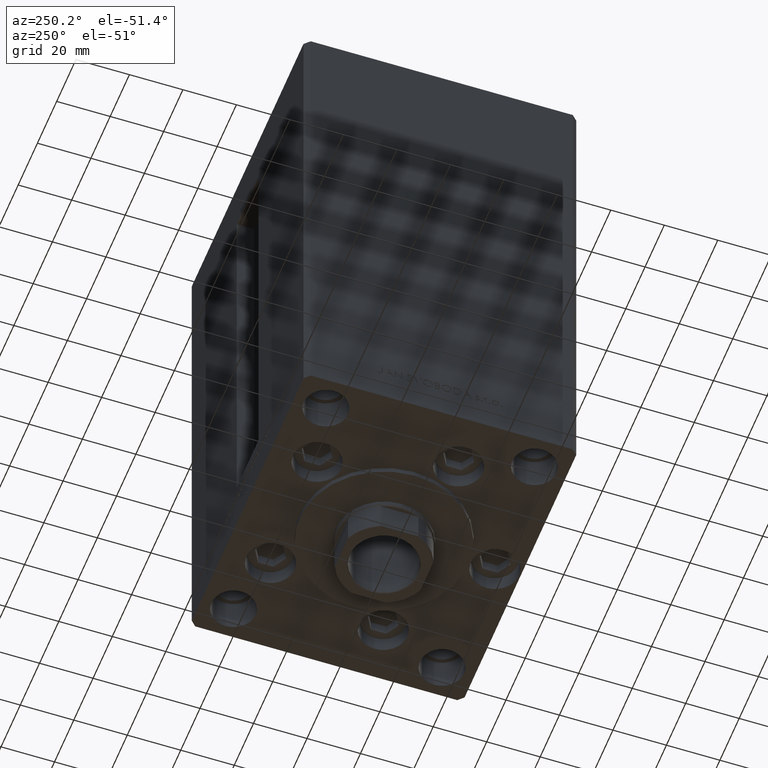
[diagram: clean part render]
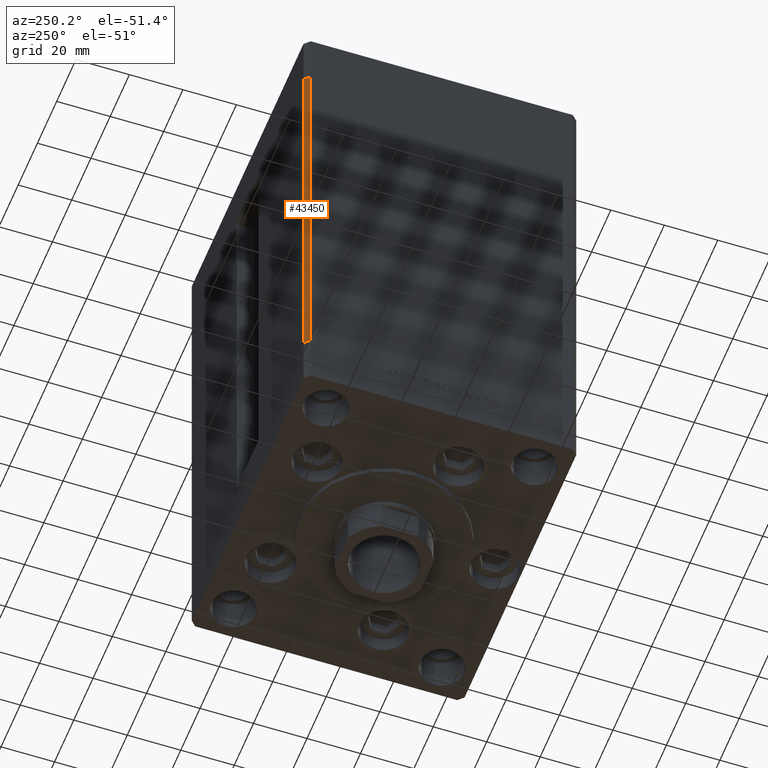
[diagram: same view with one face highlighted and labeled with its STEP entity id]
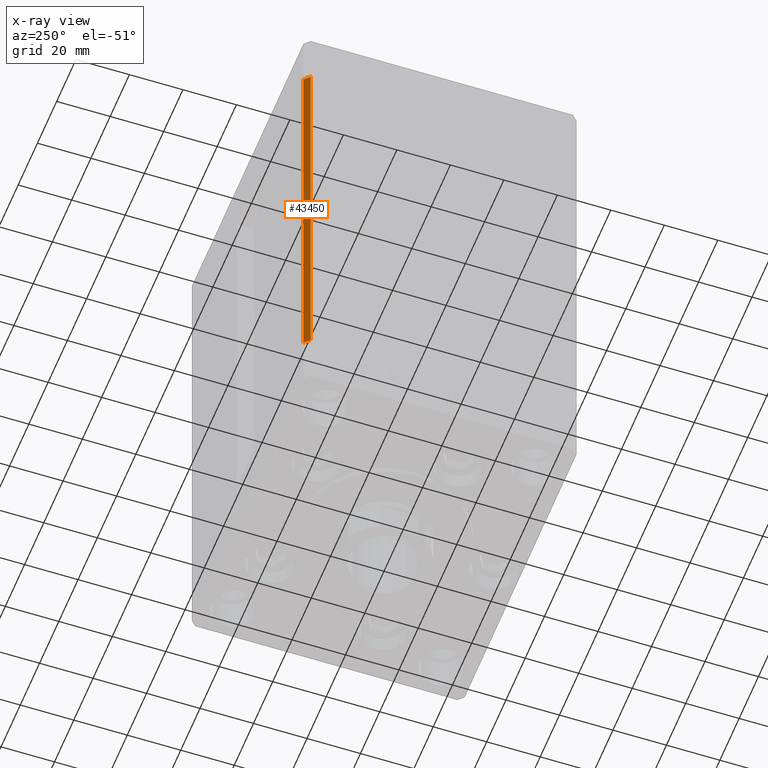
[diagram: x-ray of the same camera — body ghosted, the highlighted face saturated]
A machine part, auxiliary view. The second image highlights one B-rep face of the part: STEP entity #43450.
The next image is the same camera in x-ray: the body ghosted, the highlighted face saturated — about 0% of this face is hidden behind the body in this view.
In plain terms, the highlighted planar face has unit normal (0.7071, -0.7071, 0).
Its self-contained STEP definition (entity closure, byte-faithful):
#101 = EDGE_LOOP ( 'NONE', ( #3540, #40838, #34002, #42616 ) ) ;
#2161 = EDGE_CURVE ( 'NONE', #26567, #30780, #23352, .T. ) ;
#3054 = LINE ( 'NONE', #44311, #13132 ) ;
#3540 = ORIENTED_EDGE ( 'NONE', *, *, #35799, .T. ) ;
#3807 = VERTEX_POINT ( 'NONE', #7862 ) ;
#7862 = CARTESIAN_POINT ( 'NONE',  ( -57.99999999999999289, 51.00000000000000711, 0.000000000000000000 ) ) ;
#11552 = VECTOR ( 'NONE', #38509, 1000.000000000000114 ) ;
#12875 = DIRECTION ( 'NONE',  ( 0.7071067811865499042, 0.7071067811865451302, 0.000000000000000000 ) ) ;
#13132 = VECTOR ( 'NONE', #41565, 1000.000000000000000 ) ;
#13638 = LINE ( 'NONE', #47424, #13753 ) ;
#13753 = VECTOR ( 'NONE', #13882, 1000.000000000000000 ) ;
#13882 = DIRECTION ( 'NONE',  ( -0.000000000000000000, -0.000000000000000000, -1.000000000000000000 ) ) ;
#16349 = PLANE ( 'NONE',  #42465 ) ;
#17006 = VERTEX_POINT ( 'NONE', #39970 ) ;
#23164 = CARTESIAN_POINT ( 'NONE',  ( -57.99999999999999289, 51.00000000000000711, 148.5000000000000000 ) ) ;
#23352 = LINE ( 'NONE', #46217, #11552 ) ;
#26567 = VERTEX_POINT ( 'NONE', #23164 ) ;
#27785 = CARTESIAN_POINT ( 'NONE',  ( -57.99999999999999289, 51.00000000000000711, 148.5000000000000000 ) ) ;
#30780 = VERTEX_POINT ( 'NONE', #43329 ) ;
#34002 = ORIENTED_EDGE ( 'NONE', *, *, #2161, .F. ) ;
#35799 = EDGE_CURVE ( 'NONE', #3807, #17006, #43353, .T. ) ;
#37062 = CARTESIAN_POINT ( 'NONE',  ( -57.99999999999999289, 51.00000000000000711, 0.000000000000000000 ) ) ;
#38233 = EDGE_CURVE ( 'NONE', #30780, #17006, #13638, .T. ) ;
#38509 = DIRECTION ( 'NONE',  ( -0.7071067811865500152, -0.7071067811865451302, 0.000000000000000000 ) ) ;
#38955 = FACE_OUTER_BOUND ( 'NONE', #101, .T. ) ;
#39970 = CARTESIAN_POINT ( 'NONE',  ( -60.00000000000001421, 49.00000000000000000, 0.000000000000000000 ) ) ;
#40838 = ORIENTED_EDGE ( 'NONE', *, *, #38233, .F. ) ;
#41565 = DIRECTION ( 'NONE',  ( -0.000000000000000000, -0.000000000000000000, -1.000000000000000000 ) ) ;
#42227 = VECTOR ( 'NONE', #46837, 1000.000000000000114 ) ;
#42465 = AXIS2_PLACEMENT_3D ( 'NONE', #27785, #42937, #12875 ) ;
#42616 = ORIENTED_EDGE ( 'NONE', *, *, #45051, .T. ) ;
#42937 = DIRECTION ( 'NONE',  ( 0.7071067811865451302, -0.7071067811865499042, 0.000000000000000000 ) ) ;
#43329 = CARTESIAN_POINT ( 'NONE',  ( -60.00000000000001421, 49.00000000000000000, 148.5000000000000000 ) ) ;
#43353 = LINE ( 'NONE', #37062, #42227 ) ;
#43450 = ADVANCED_FACE ( 'NONE', ( #38955 ), #16349, .F. ) ;
#44311 = CARTESIAN_POINT ( 'NONE',  ( -57.99999999999999289, 51.00000000000000711, 148.5000000000000000 ) ) ;
#45051 = EDGE_CURVE ( 'NONE', #26567, #3807, #3054, .T. ) ;
#46217 = CARTESIAN_POINT ( 'NONE',  ( -57.99999999999999289, 51.00000000000000711, 148.5000000000000000 ) ) ;
#46837 = DIRECTION ( 'NONE',  ( -0.7071067811865500152, -0.7071067811865451302, 0.000000000000000000 ) ) ;
#47424 = CARTESIAN_POINT ( 'NONE',  ( -60.00000000000001421, 49.00000000000000000, 148.5000000000000000 ) ) ;